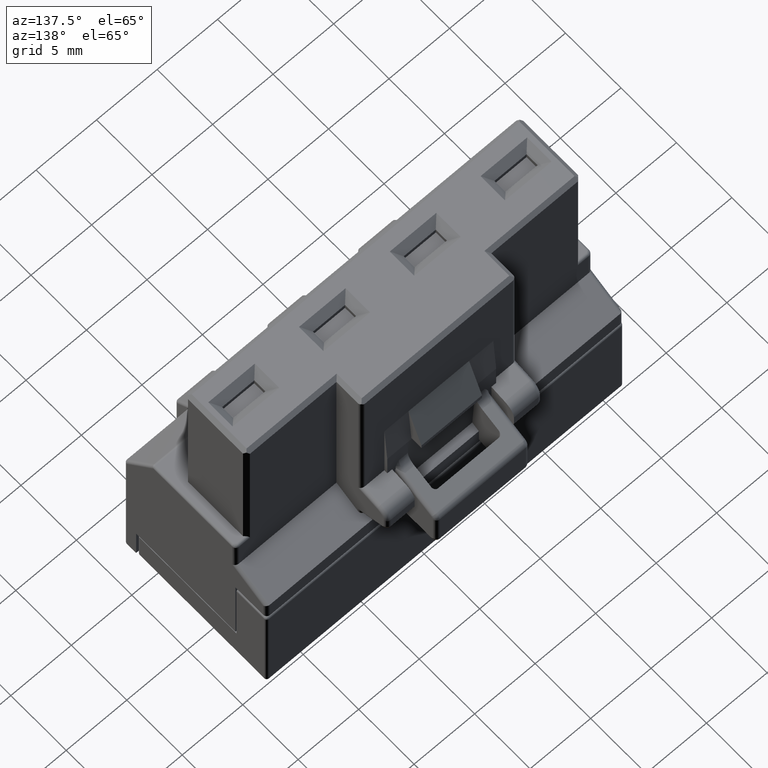
[diagram: clean part render]
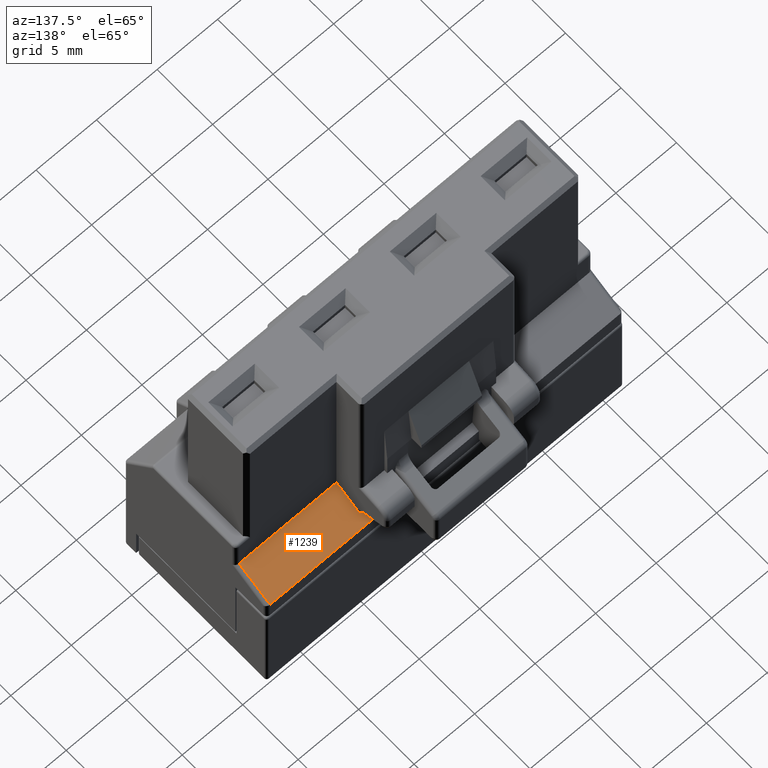
[diagram: same view with one face highlighted and labeled with its STEP entity id]
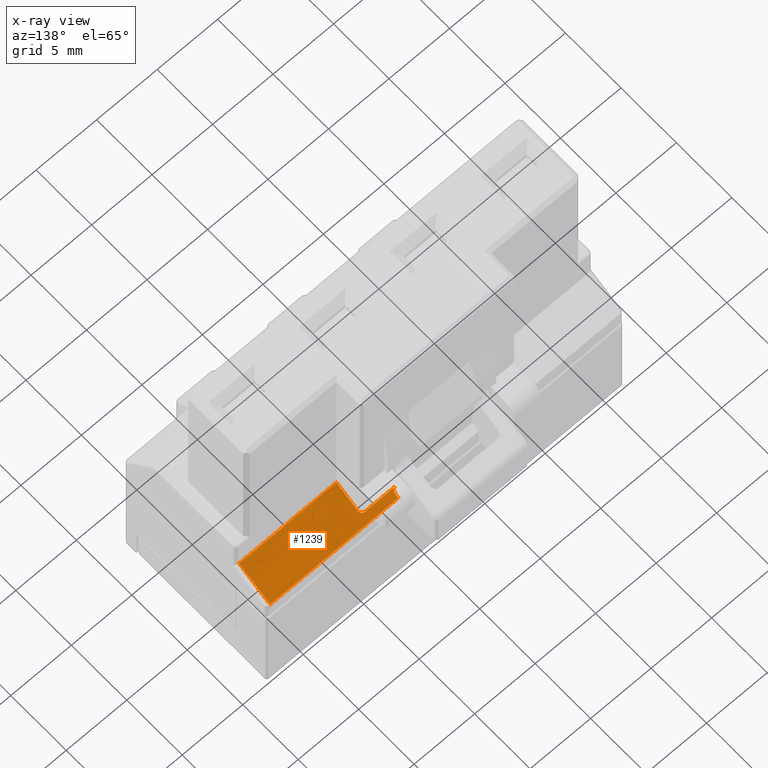
[diagram: x-ray of the same camera — body ghosted, the highlighted face saturated]
A machine part, auxiliary view. The second image highlights one B-rep face of the part: STEP entity #1239.
The next image is the same camera in x-ray: the body ghosted, the highlighted face saturated — about 0% of this face is hidden behind the body in this view.
In plain terms, the highlighted planar face has unit normal (0, -0.4722, -0.8815).
Its self-contained STEP definition (entity closure, byte-faithful):
#346=ELLIPSE('',#13237,0.331496807301135,0.3);
#348=ELLIPSE('',#13241,0.381636699960602,0.3);
#573=FACE_OUTER_BOUND('',#2468,.T.);
#1239=ADVANCED_FACE('',(#573),#1860,.F.);
#1860=PLANE('',#13276);
#2468=EDGE_LOOP('',(#7179,#7180,#7181,#7182,#7183,#7184,#7185,#7186,#7187));
#3518=LINE('',#18858,#5025);
#3521=LINE('',#18866,#5028);
#3524=LINE('',#18878,#5031);
#3543=LINE('',#19020,#5050);
#3545=LINE('',#19024,#5052);
#3546=LINE('',#19026,#5053);
#3547=LINE('',#19028,#5054);
#5025=VECTOR('',#15062,1.);
#5028=VECTOR('',#15071,1.);
#5031=VECTOR('',#15084,1.);
#5050=VECTOR('',#15165,1.);
#5052=VECTOR('',#15169,1.);
#5053=VECTOR('',#15170,1.);
#5054=VECTOR('',#15171,1.);
#7179=ORIENTED_EDGE('',*,*,#11570,.T.);
#7180=ORIENTED_EDGE('',*,*,#11571,.T.);
#7181=ORIENTED_EDGE('',*,*,#11572,.T.);
#7182=ORIENTED_EDGE('',*,*,#11530,.F.);
#7183=ORIENTED_EDGE('',*,*,#11526,.F.);
#7184=ORIENTED_EDGE('',*,*,#11524,.T.);
#7185=ORIENTED_EDGE('',*,*,#11522,.T.);
#7186=ORIENTED_EDGE('',*,*,#11520,.T.);
#7187=ORIENTED_EDGE('',*,*,#11568,.F.);
#10139=VERTEX_POINT('',#18857);
#10140=VERTEX_POINT('',#18859);
#10141=VERTEX_POINT('',#18863);
#10142=VERTEX_POINT('',#18867);
#10143=VERTEX_POINT('',#18871);
#10145=VERTEX_POINT('',#18876);
#10168=VERTEX_POINT('',#19021);
#10169=VERTEX_POINT('',#19025);
#10170=VERTEX_POINT('',#19027);
#11520=EDGE_CURVE('',#10140,#10139,#3518,.T.);
#11522=EDGE_CURVE('',#10141,#10140,#346,.T.);
#11524=EDGE_CURVE('',#10142,#10141,#3521,.T.);
#11526=EDGE_CURVE('',#10142,#10143,#348,.T.);
#11530=EDGE_CURVE('',#10143,#10145,#3524,.T.);
#11568=EDGE_CURVE('',#10168,#10139,#3543,.T.);
#11570=EDGE_CURVE('',#10168,#10169,#3545,.T.);
#11571=EDGE_CURVE('',#10169,#10170,#3546,.T.);
#11572=EDGE_CURVE('',#10170,#10145,#3547,.T.);
#13237=AXIS2_PLACEMENT_3D('',#18862,#15066,#15067);
#13241=AXIS2_PLACEMENT_3D('',#18870,#15076,#15077);
#13276=AXIS2_PLACEMENT_3D('',#19029,#15172,#15173);
#15062=DIRECTION('',(0.,-0.881479970028794,0.472221412515397));
#15066=DIRECTION('',(0.,-0.472221412515397,-0.881479970028794));
#15067=DIRECTION('',(0.,-0.881479970028794,0.472221412515397));
#15071=DIRECTION('',(1.,0.,0.));
#15076=DIRECTION('',(0.,0.472221412515397,0.881479970028794));
#15077=DIRECTION('',(0.,-0.881479970028794,0.472221412515397));
#15084=DIRECTION('',(0.,0.881479970028794,-0.472221412515397));
#15165=DIRECTION('',(-0.999999999998909,1.30747912144101E-006,-6.87687694756806E-007));
#15169=DIRECTION('',(2.36565729385202E-005,0.881480504186606,-0.472220414826903));
#15170=DIRECTION('',(-0.999999999998913,9.01043918625712E-007,-1.16703358499702E-006));
#15171=DIRECTION('',(-1.,-1.472706097622E-014,-2.1862853408E-014));
#15172=DIRECTION('',(0.,-0.472221412515397,-0.881479970028794));
#15173=DIRECTION('',(0.,0.881479970028794,-0.472221412515397));
#18857=CARTESIAN_POINT('',(-4.85,2.7050014382268,-14.8000015129125));
#18858=CARTESIAN_POINT('',(-4.85,5.505,-16.3));
#18859=CARTESIAN_POINT('',(-4.85,4.61975463387371,-15.8257614110038));
#18862=CARTESIAN_POINT('',(-5.15,4.61975463387371,-15.8257614110038));
#18863=CARTESIAN_POINT('',(-5.15,4.91196242963816,-15.9823013015919));
#18866=CARTESIAN_POINT('',(-26.,4.91196242963816,-15.9823013015919));
#18867=CARTESIAN_POINT('',(-7.63204760503687,4.91196242963816,-15.9823013015919));
#18870=CARTESIAN_POINT('',(-7.7,5.23962413521621,-16.1578343581516));
#18871=CARTESIAN_POINT('',(-7.4,5.2396241352156,-16.1578343581512));
#18876=CARTESIAN_POINT('',(-7.4,5.50500000000018,-16.2999999999997));
#18878=CARTESIAN_POINT('',(-7.4,5.505,-16.3));
#19020=CARTESIAN_POINT('',(3.200198600524,2.704992350987,-14.79999597689));
#19021=CARTESIAN_POINT('',(3.200198600524,2.704992350987,-14.79999597689));
#19024=CARTESIAN_POINT('',(3.200198600524,2.704992350987,-14.79999597689));
#19025=CARTESIAN_POINT('',(3.200273745079,5.504994728646,-16.29999317253));
#19026=CARTESIAN_POINT('',(3.200273745079,5.504994728646,-16.29999317253));
#19027=CARTESIAN_POINT('',(-4.85,5.5050019822962,-16.3000025674698));
#19028=CARTESIAN_POINT('',(-19.85,5.505,-16.3));
#19029=CARTESIAN_POINT('',(-41.,5.505,-16.3));